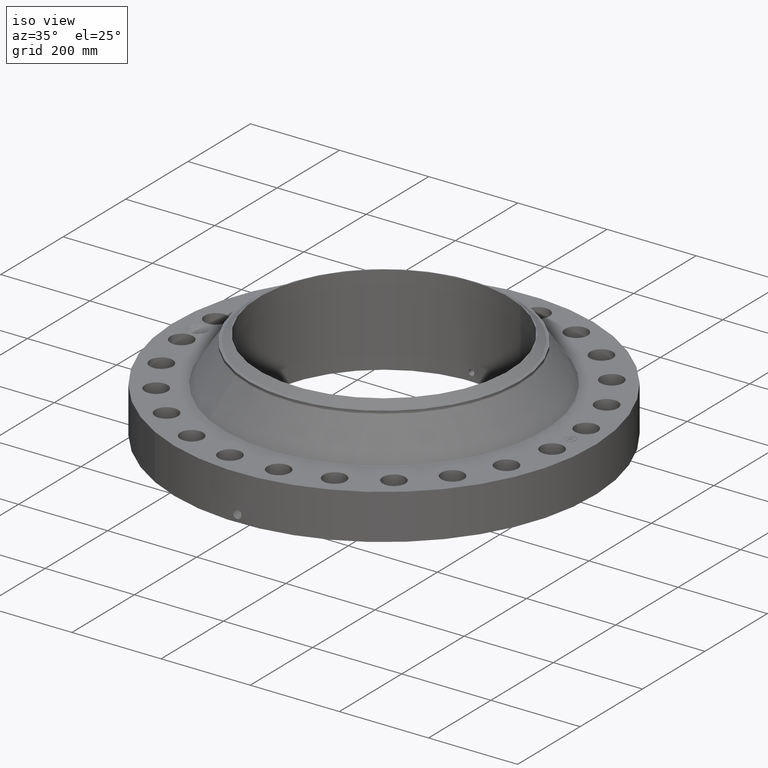
[diagram: clean part render]
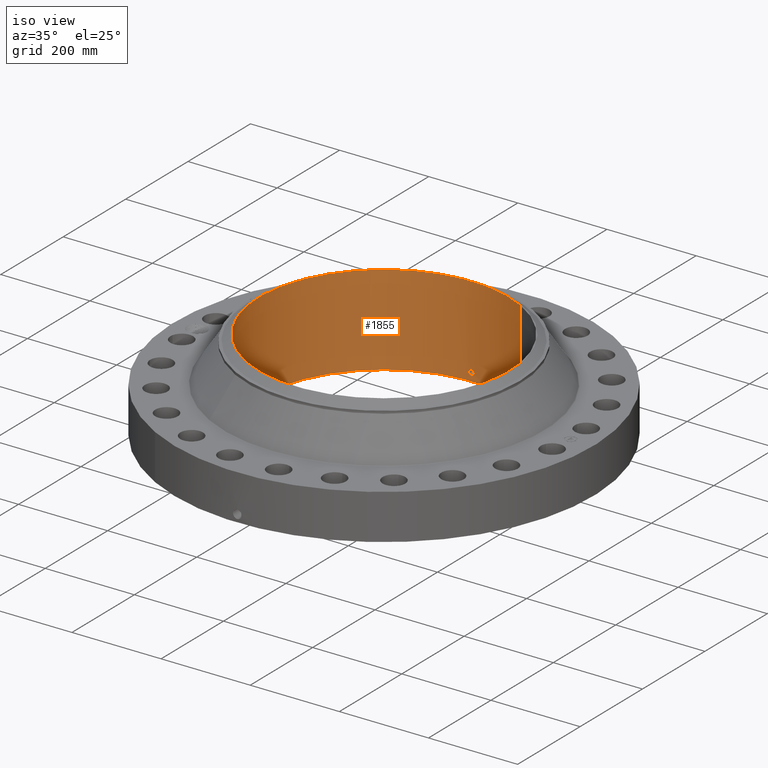
[diagram: same view with one face highlighted and labeled with its STEP entity id]
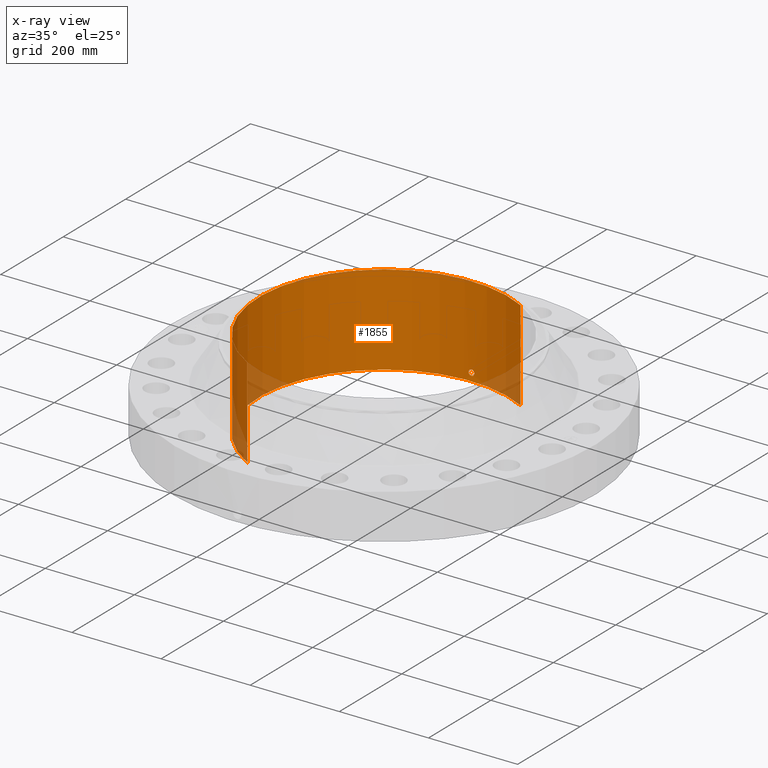
[diagram: x-ray of the same camera — body ghosted, the highlighted face saturated]
A machine part, iso view. The second image highlights one B-rep face of the part: STEP entity #1855.
The next image is the same camera in x-ray: the body ghosted, the highlighted face saturated — about 7% of this face is hidden behind the body in this view.
In plain terms, the highlighted cylindrical surface (partial cylindrical patch) has radius 280.187 mm, axis along (0, 0, -1).
Its self-contained STEP definition (entity closure, byte-faithful):
#269=AXIS2_PLACEMENT_3D('Circle Axis2P3D',#267,#268,$) ;
#1732=AXIS2_PLACEMENT_3D('Cylinder Axis2P3D',#1729,#1730,#1731) ;
#1804=AXIS2_PLACEMENT_3D('Circle Axis2P3D',#1802,#1803,$) ;
#262=CARTESIAN_POINT('Vertex',(5.28854311636,9.68061324025,0.250000000001)) ;
#264=CARTESIAN_POINT('Vertex',(-5.28854311636,-9.68061324025,0.250000000001)) ;
#267=CARTESIAN_POINT('Axis2P3D Location',(0.,0.,0.250000000001)) ;
#1729=CARTESIAN_POINT('Axis2P3D Location',(0.,0.,4.25000000002)) ;
#1738=CARTESIAN_POINT('Vertex',(5.28854311636,9.68061324025,8.25000000003)) ;
#1740=CARTESIAN_POINT('Vertex',(-5.28854311636,-9.68061324025,8.25000000003)) ;
#1743=CARTESIAN_POINT('Line Origine',(5.28854311636,9.68061324025,4.25000000002)) ;
#1748=CARTESIAN_POINT('Line Origine',(-5.28854311636,-9.68061324025,4.25000000002)) ;
#1802=CARTESIAN_POINT('Axis2P3D Location',(0.,0.,8.25000000003)) ;
#1814=CARTESIAN_POINT('Control Point',(0.219395640473,11.0288180035,1.05985638466)) ;
#1815=CARTESIAN_POINT('Control Point',(0.194442744867,11.02931439,1.10553235368)) ;
#1816=CARTESIAN_POINT('Control Point',(0.157604046204,11.0299766217,1.14471319064)) ;
#1817=CARTESIAN_POINT('Control Point',(0.111104848895,11.0306207026,1.17324441446)) ;
#1818=CARTESIAN_POINT('Control Point',(0.0336689370115,11.0311331377,1.19588322566)) ;
#1819=CARTESIAN_POINT('Control Point',(-0.0446762513626,11.030956022,1.18805566324)) ;
#1820=CARTESIAN_POINT('Control Point',(-0.0703074712913,11.0308185288,1.18204211956)) ;
#1821=CARTESIAN_POINT('Control Point',(-0.143965419621,11.0302109711,1.15420674493)) ;
#1822=CARTESIAN_POINT('Control Point',(-0.203254200091,11.0292193473,1.09948605159)) ;
#1823=CARTESIAN_POINT('Control Point',(-0.23221735495,11.0285690599,1.05324252944)) ;
#1824=CARTESIAN_POINT('Control Point',(-0.255841819933,11.0280346243,0.975097496454)) ;
#1825=CARTESIAN_POINT('Control Point',(-0.248280457329,11.0282055388,0.895737176496)) ;
#1826=CARTESIAN_POINT('Control Point',(-0.242046735877,11.0283484844,0.869178407342)) ;
#1827=CARTESIAN_POINT('Control Point',(-0.232314046454,11.0285610184,0.843790598883)) ;
#1828=CARTESIAN_POINT('Control Point',(-0.219395640473,11.0288180035,0.820143615352)) ;
#1829=CARTESIAN_POINT('Vertex',(0.219395640473,11.0288180035,1.05985638466)) ;
#1831=CARTESIAN_POINT('Vertex',(-0.219395640473,11.0288180035,0.820143615352)) ;
#1835=CARTESIAN_POINT('Control Point',(-0.219395640473,11.0288180035,0.820143615352)) ;
#1836=CARTESIAN_POINT('Control Point',(-0.194442744858,11.02931439,0.774467646308)) ;
#1837=CARTESIAN_POINT('Control Point',(-0.157604046179,11.0299766217,0.735286809345)) ;
#1838=CARTESIAN_POINT('Control Point',(-0.111104848931,11.0306207026,0.706755585559)) ;
#1839=CARTESIAN_POINT('Control Point',(-0.0336689370277,11.0311331377,0.684116774342)) ;
#1840=CARTESIAN_POINT('Control Point',(0.0446762513653,11.030956022,0.691944336765)) ;
#1841=CARTESIAN_POINT('Control Point',(0.0703074712888,11.0308185288,0.697957880447)) ;
#1842=CARTESIAN_POINT('Control Point',(0.143965419662,11.0302109711,0.725793255088)) ;
#1843=CARTESIAN_POINT('Control Point',(0.203254200158,11.0292193473,0.780513948477)) ;
#1844=CARTESIAN_POINT('Control Point',(0.232217354923,11.0285690599,0.826757470479)) ;
#1845=CARTESIAN_POINT('Control Point',(0.255841819966,11.0280346243,0.904902503602)) ;
#1846=CARTESIAN_POINT('Control Point',(0.248280457311,11.0282055388,0.984262823699)) ;
#1847=CARTESIAN_POINT('Control Point',(0.242046735944,11.0283484844,1.01082159249)) ;
#1848=CARTESIAN_POINT('Control Point',(0.232314046498,11.0285610184,1.03620940104)) ;
#1849=CARTESIAN_POINT('Control Point',(0.219395640473,11.0288180035,1.05985638466)) ;
#268=DIRECTION('Axis2P3D Direction',(0.,0.,-0.0393700787402)) ;
#1730=DIRECTION('Axis2P3D Direction',(0.,0.,-0.0393700787402)) ;
#1731=DIRECTION('Axis2P3D XDirection',(-0.0188750212049,-0.0345504945626,0.)) ;
#1744=DIRECTION('Vector Direction',(0.,0.,-0.0393700787402)) ;
#1749=DIRECTION('Vector Direction',(0.,0.,-0.0393700787402)) ;
#1803=DIRECTION('Axis2P3D Direction',(0.,0.,-0.0393700787402)) ;
#1745=VECTOR('Line Direction',#1744,0.0393700787402) ;
#1750=VECTOR('Line Direction',#1749,0.0393700787402) ;
#1808=ORIENTED_EDGE('',*,*,#1806,.F.) ;
#1809=ORIENTED_EDGE('',*,*,#1752,.T.) ;
#1810=ORIENTED_EDGE('',*,*,#271,.T.) ;
#1811=ORIENTED_EDGE('',*,*,#1747,.F.) ;
#1852=ORIENTED_EDGE('',*,*,#1833,.F.) ;
#1853=ORIENTED_EDGE('',*,*,#1850,.F.) ;
#1854=FACE_BOUND('',#1851,.T.) ;
#1855=ADVANCED_FACE('PartBody',(#1812,#1854),#1733,.F.) ;
#1813=B_SPLINE_CURVE_WITH_KNOTS('',5,(#1814,#1815,#1816,#1817,#1818,#1819,#1820,#1821,#1822,#1823,#1824,#1825,#1826,#1827,#1828),.UNSPECIFIED.,.F.,.U.,(6,3,3,3,6),(0.,9.34842082073,14.0229977782,23.3730437087,28.2128305351),.UNSPECIFIED.) ;
#1834=B_SPLINE_CURVE_WITH_KNOTS('',5,(#1835,#1836,#1837,#1838,#1839,#1840,#1841,#1842,#1843,#1844,#1845,#1846,#1847,#1848,#1849),.UNSPECIFIED.,.F.,.U.,(6,3,3,3,6),(0.,9.34842082391,14.0229977817,23.37304372,28.2128305631),.UNSPECIFIED.) ;
#270=CIRCLE('generated circle',#269,11.031) ;
#1805=CIRCLE('generated circle',#1804,11.031) ;
#1733=CYLINDRICAL_SURFACE('generated cylinder',#1732,11.031) ;
#271=EDGE_CURVE('',#265,#263,#270,.T.) ;
#1747=EDGE_CURVE('',#1739,#263,#1746,.T.) ;
#1752=EDGE_CURVE('',#1741,#265,#1751,.T.) ;
#1806=EDGE_CURVE('',#1741,#1739,#1805,.T.) ;
#1833=EDGE_CURVE('',#1830,#1832,#1813,.T.) ;
#1850=EDGE_CURVE('',#1832,#1830,#1834,.T.) ;
#1807=EDGE_LOOP('',(#1808,#1809,#1810,#1811)) ;
#1851=EDGE_LOOP('',(#1852,#1853)) ;
#1812=FACE_OUTER_BOUND('',#1807,.T.) ;
#1746=LINE('Line',#1743,#1745) ;
#1751=LINE('Line',#1748,#1750) ;
#263=VERTEX_POINT('',#262) ;
#265=VERTEX_POINT('',#264) ;
#1739=VERTEX_POINT('',#1738) ;
#1741=VERTEX_POINT('',#1740) ;
#1830=VERTEX_POINT('',#1829) ;
#1832=VERTEX_POINT('',#1831) ;